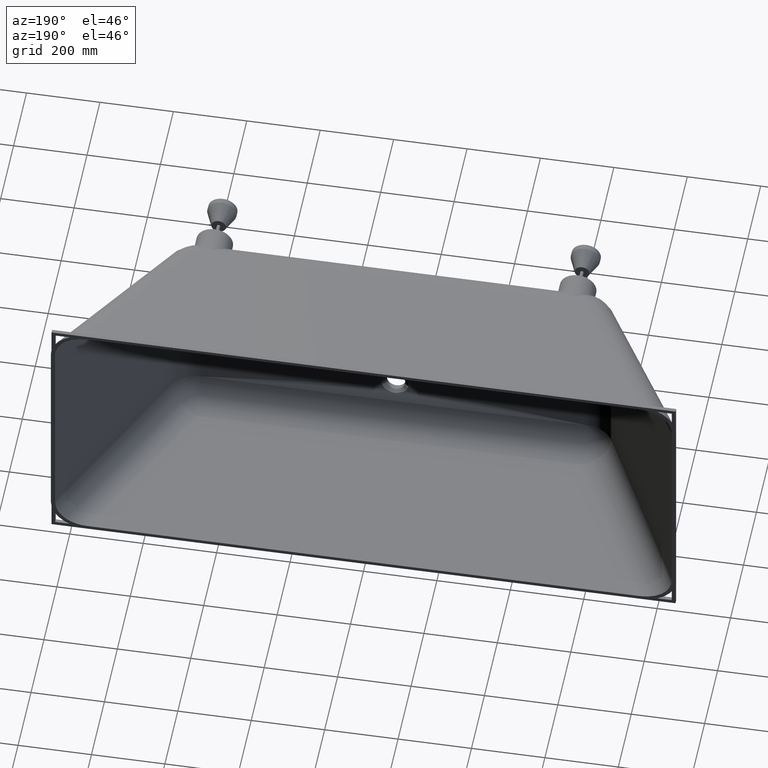
[diagram: clean part render]
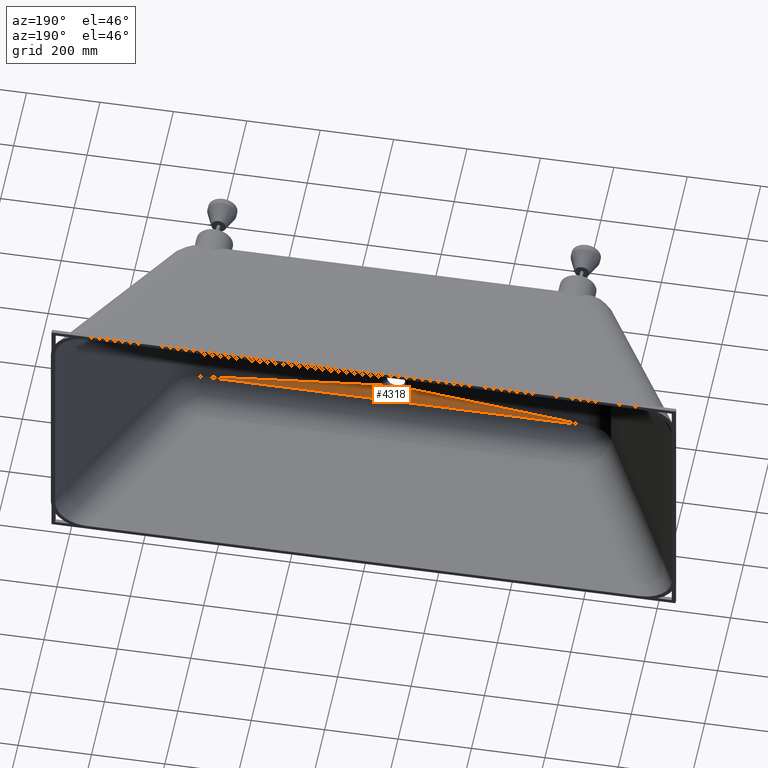
[diagram: same view with one face highlighted and labeled with its STEP entity id]
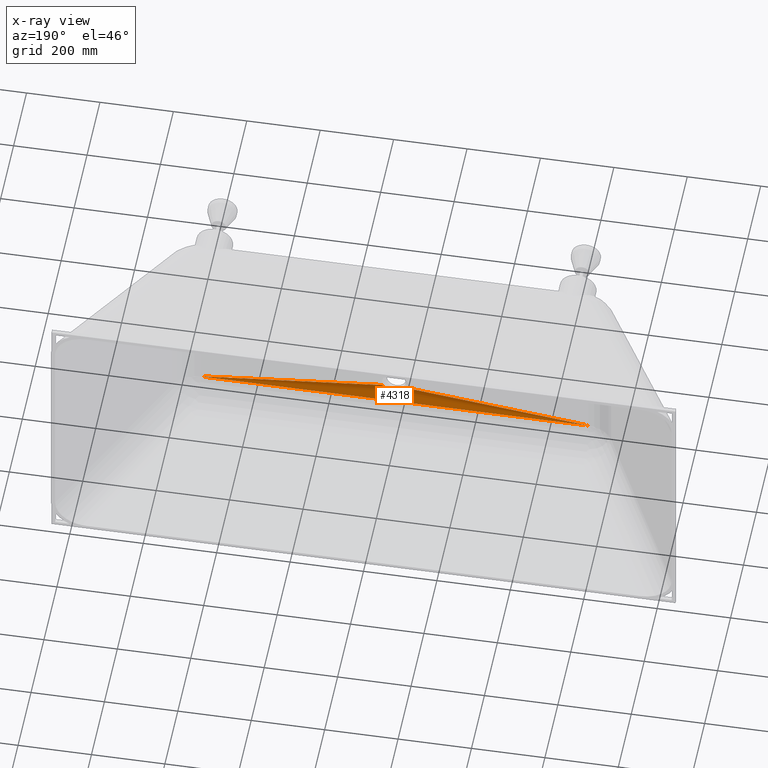
[diagram: x-ray of the same camera — body ghosted, the highlighted face saturated]
A machine part, auxiliary view. The second image highlights one B-rep face of the part: STEP entity #4318.
The next image is the same camera in x-ray: the body ghosted, the highlighted face saturated — about 0% of this face is hidden behind the body in this view.
In plain terms, the highlighted face is a freeform B-spline surface patch.
Its self-contained STEP definition (entity closure, byte-faithful):
#44 = CARTESIAN_POINT ( 'NONE',  ( 351.9199140292354300, -478.0000000000001100, -229.4140630938798600 ) ) ;
#107 = CARTESIAN_POINT ( 'NONE',  ( 373.9149086560627200, -478.0000000000001100, -229.4140630938798600 ) ) ;
#122 = CARTESIAN_POINT ( 'NONE',  ( -16.42856483593766400, -489.9999999999999400, -195.1927728411986900 ) ) ;
#164 = CARTESIAN_POINT ( 'NONE',  ( 552.0021505911377100, -478.0000000000000000, -229.4140630938798300 ) ) ;
#168 = CARTESIAN_POINT ( 'NONE',  ( 24.27977139692567100, -490.0000000000000000, -184.3637624961061500 ) ) ;
#178 = CARTESIAN_POINT ( 'NONE',  ( 543.9613907420429100, -478.0000000000000000, -229.4140630938798300 ) ) ;
#205 = CARTESIAN_POINT ( 'NONE',  ( 24.13499931846997300, -490.0000000000000000, -184.6968818571222600 ) ) ;
#234 = CARTESIAN_POINT ( 'NONE',  ( -14.36089649228784600, -489.9999999999999400, -196.7119890733818300 ) ) ;
#259 = CARTESIAN_POINT ( 'NONE',  ( -241.9449408950995900, -478.0000000000001100, -229.4140630938799700 ) ) ;
#276 = CARTESIAN_POINT ( 'NONE',  ( -219.9499462682723800, -478.0000000000000600, -229.4140630938799700 ) ) ;
#328 = CARTESIAN_POINT ( 'NONE',  ( -13.24512578899276100, -490.0000000000000000, -197.4134264820899300 ) ) ;
#347 = CARTESIAN_POINT ( 'NONE',  ( 19.89495497657938100, -490.0000000000000000, -191.7779520593507500 ) ) ;
#371 = ORIENTED_EDGE ( 'NONE', *, *, #8145, .F. ) ;
#452 = CARTESIAN_POINT ( 'NONE',  ( -9.612949430182062800, -490.0000000000000600, -199.1972234332660300 ) ) ;
#514 = FACE_OUTER_BOUND ( 'NONE', #3612, .T. ) ;
#679 = CARTESIAN_POINT ( 'NONE',  ( -153.9649623877907300, -478.0000000000000600, -229.4140630938799700 ) ) ;
#789 = CARTESIAN_POINT ( 'NONE',  ( 34.90921865954059900, -489.7582946406475300, -185.2711710388507800 ) ) ;
#840 = CARTESIAN_POINT ( 'NONE',  ( -34.81312579075545000, -489.7535379807531500, -185.6169972491677200 ) ) ;
#855 = CARTESIAN_POINT ( 'NONE',  ( -285.9349301487540600, -478.0000000000001100, -229.4140630938799700 ) ) ;
#892 = CARTESIAN_POINT ( 'NONE',  ( -34.71219116730799900, -489.7487132274145000, -185.9610007341331900 ) ) ;
#909 = EDGE_CURVE ( 'NONE', #8344, #3285, #1135, .T. ) ;
#998 = CARTESIAN_POINT ( 'NONE',  ( -34.90911777719951900, -489.7582870126469200, -185.2715435661417900 ) ) ;
#1019 = ORIENTED_EDGE ( 'NONE', *, *, #1194, .F. ) ;
#1073 = CARTESIAN_POINT ( 'NONE',  ( 2.841497131728465000, -490.0000000000000600, -200.8827692435549200 ) ) ;
#1088 = CARTESIAN_POINT ( 'NONE',  ( 5.626477120166374100, -490.0000000000000000, -200.4231116286142400 ) ) ;
#1129 = CARTESIAN_POINT ( 'NONE',  ( -24.27961477613819600, -490.0000000000000000, -184.3641228792490900 ) ) ;
#1135 = B_SPLINE_CURVE_WITH_KNOTS ( 'NONE', 3,
 ( #998, #840, #892, #1723 ),
 .UNSPECIFIED., .F., .F.,
 ( 4, 4 ),
 ( 0.0000000000000000000, 0.001075613878609337400 ),
 .UNSPECIFIED. ) ;
#1185 = B_SPLINE_CURVE_WITH_KNOTS ( 'NONE', 3,
 ( #10769, #10661, #5772, #10350, #10746, #5886 ),
 .UNSPECIFIED., .F., .F.,
 ( 4, 2, 4 ),
 ( 0.2310210792512983600, 0.2317490742567742100, 0.2321187111512779400 ),
 .UNSPECIFIED. ) ;
#1194 = EDGE_CURVE ( 'NONE', #9115, #8344, #1185, .T. ) ;
#1302 = CARTESIAN_POINT ( 'NONE',  ( 34.90921865954059900, -489.7582946406475300, -185.2711710388507800 ) ) ;
#1316 = CARTESIAN_POINT ( 'NONE',  ( 34.81319822774273100, -489.7535414440533800, -185.6167503427229200 ) ) ;
#1358 = CARTESIAN_POINT ( 'NONE',  ( 34.60653280213917800, -489.7438010452975200, -186.3036181321439500 ) ) ;
#1393 = CARTESIAN_POINT ( 'NONE',  ( 87.97997850730871500, -478.0000000000000000, -229.4140630938798600 ) ) ;
#1421 = CARTESIAN_POINT ( 'NONE',  ( 34.71222908998471000, -489.7487149903726000, -185.9608777679274000 ) ) ;
#1426 = CARTESIAN_POINT ( 'NONE',  ( 6.990552677400435400, -490.0000000000000600, -200.0808012609470600 ) ) ;
#1485 = CARTESIAN_POINT ( 'NONE',  ( -34.60653666516741100, -489.7437970501803200, -186.3036192662227700 ) ) ;
#1723 = CARTESIAN_POINT ( 'NONE',  ( -34.60653666516741100, -489.7437970501803200, -186.3036192662227700 ) ) ;
#1734 = CARTESIAN_POINT ( 'NONE',  ( 14.36089649228786400, -490.0000000000000000, -196.7119890733818300 ) ) ;
#1755 = CARTESIAN_POINT ( 'NONE',  ( 34.57137153912265900, -489.7446386604132200, -186.3005250338019600 ) ) ;
#1837 = CARTESIAN_POINT ( 'NONE',  ( 417.9048979097171900, -478.0000000000000600, -229.4140630938798300 ) ) ;
#1861 = CARTESIAN_POINT ( 'NONE',  ( 21.29176422386267800, -490.0000000000000600, -189.9656167618122100 ) ) ;
#1908 = VERTEX_POINT ( 'NONE', #10597 ) ;
#1975 = CARTESIAN_POINT ( 'NONE',  ( -109.9749731341362900, -478.0000000000000000, -229.4140630938799700 ) ) ;
#2168 = CARTESIAN_POINT ( 'NONE',  ( 21.90740286668459900, -489.9999999999999400, -189.0430849932369300 ) ) ;
#2211 = CARTESIAN_POINT ( 'NONE',  ( -19.89495497657936700, -489.9999999999999400, -191.7779520593507800 ) ) ;
#2242 = CARTESIAN_POINT ( 'NONE',  ( 439.8998925365444300, -478.0000000000000600, -229.4140630938798300 ) ) ;
#2255 = CARTESIAN_POINT ( 'NONE',  ( 505.8848764170260800, -478.0000000000000000, -229.4140630938798300 ) ) ;
#2273 = B_SPLINE_SURFACE_WITH_KNOTS ( 'NONE', 3, 1, ( 
 ( #3900, #1129 ),
 ( #9882, #9755 ),
 ( #9957, #6351 ),
 ( #7976, #3951 ),
 ( #7918, #4149 ),
 ( #6277, #9969 ),
 ( #9361, #9809 ),
 ( #9181, #6893 ),
 ( #2882, #2211 ),
 ( #2700, #7511 ),
 ( #9323, #9168 ),
 ( #855, #122 ),
 ( #259, #234 ),
 ( #276, #328 ),
 ( #2432, #3470 ),
 ( #679, #452 ),
 ( #1975, #5833 ),
 ( #3489, #6653 ),
 ( #6674, #6741 ),
 ( #7785, #7380 ),
 ( #8093, #7419 ),
 ( #7751, #1073 ),
 ( #1393, #1088 ),
 ( #3476, #1426 ),
 ( #7607, #7701 ),
 ( #9281, #9335 ),
 ( #9909, #10043 ),
 ( #10706, #1734 ),
 ( #3103, #4437 ),
 ( #9577, #8335 ),
 ( #44, #10799 ),
 ( #107, #347 ),
 ( #1837, #1861 ),
 ( #2242, #2168 ),
 ( #3080, #2352 ),
 ( #2255, #2903 ),
 ( #3045, #2981 ),
 ( #2884, #2294 ),
 ( #178, #205 ),
 ( #164, #168 ) ),
 .UNSPECIFIED., .F., .F., .F.,
 ( 4, 3, 2, 2, 2, 2, 2, 2, 2, 2, 2, 2, 2, 2, 2, 2, 2, 3, 4 ),
 ( 2, 2 ),
 ( -0.02284002670223699000, 0.0000000000000000000, 0.06250000000000000000, 0.1250000000000000000, 0.1875000000000000000, 0.2500000000000000000, 0.3125000000000000000, 0.3750000000000000000, 0.4375000000000000000, 0.5000000000000000000, 0.5625000000000000000, 0.6250000000000000000, 0.6875000000000000000, 0.7500000000000000000, 0.8125000000000000000, 0.8750000000000000000, 0.9375000000000000000, 1.000000000000000000, 1.022848266121214400 ),
 ( 0.0000000000000000000, 1.000000000000000000 ),
 .UNSPECIFIED. ) ;
#2294 = CARTESIAN_POINT ( 'NONE',  ( 23.99022724001427400, -490.0000000000000000, -185.0300012181384100 ) ) ;
#2352 = CARTESIAN_POINT ( 'NONE',  ( 22.98618653362839800, -490.0000000000000000, -187.1974491239659200 ) ) ;
#2432 = CARTESIAN_POINT ( 'NONE',  ( -175.9599570146179100, -478.0000000000000600, -229.4140630938799700 ) ) ;
#2506 = CARTESIAN_POINT ( 'NONE',  ( -275.8626631027058800, -484.0000000000000000, -207.3885918365172600 ) ) ;
#2533 = ORIENTED_EDGE ( 'NONE', *, *, #4844, .F. ) ;
#2700 = CARTESIAN_POINT ( 'NONE',  ( -351.9199140292356600, -478.0000000000000600, -229.4140630938799700 ) ) ;
#2815 = CARTESIAN_POINT ( 'NONE',  ( 34.57137153912265900, -489.7446386604132200, -186.3005250338019600 ) ) ;
#2838 = CARTESIAN_POINT ( 'NONE',  ( 34.64906590777956600, -489.7476592508298800, -186.0764840359326500 ) ) ;
#2882 = CARTESIAN_POINT ( 'NONE',  ( -373.9149086560628300, -478.0000000000000600, -229.4140630938799700 ) ) ;
#2884 = CARTESIAN_POINT ( 'NONE',  ( 535.9206308929481100, -478.0000000000000000, -229.4140630938798300 ) ) ;
#2903 = CARTESIAN_POINT ( 'NONE',  ( 23.44944021427643200, -490.0000000000000600, -186.2743477135486200 ) ) ;
#2949 = CARTESIAN_POINT ( 'NONE',  ( 34.90921865954059900, -489.7582946406475300, -185.2711710388507800 ) ) ;
#2981 = CARTESIAN_POINT ( 'NONE',  ( 23.84545516155857600, -490.0000000000000000, -185.3631205791545300 ) ) ;
#3045 = CARTESIAN_POINT ( 'NONE',  ( 527.8798710438532000, -478.0000000000000000, -229.4140630938798300 ) ) ;
#3080 = CARTESIAN_POINT ( 'NONE',  ( 483.8898817901989000, -478.0000000000000000, -229.4140630938798300 ) ) ;
#3103 = CARTESIAN_POINT ( 'NONE',  ( 285.9349301487537200, -478.0000000000001100, -229.4140630938798600 ) ) ;
#3211 = VERTEX_POINT ( 'NONE', #4646 ) ;
#3285 = VERTEX_POINT ( 'NONE', #1485 ) ;
#3362 = CARTESIAN_POINT ( 'NONE',  ( 30.62448189065692400, -489.5761939994614500, -194.1135667085229100 ) ) ;
#3470 = CARTESIAN_POINT ( 'NONE',  ( -10.87113848044312000, -489.9999999999999400, -198.6561491366054500 ) ) ;
#3476 = CARTESIAN_POINT ( 'NONE',  ( 109.9749731341359200, -478.0000000000000600, -229.4140630938798600 ) ) ;
#3489 = CARTESIAN_POINT ( 'NONE',  ( -87.97997850730907000, -478.0000000000000000, -229.4140630938799500 ) ) ;
#3527 = CARTESIAN_POINT ( 'NONE',  ( 32.24490333195215200, -489.6511361342630300, -191.5336033166190600 ) ) ;
#3612 = EDGE_LOOP ( 'NONE', ( #5550, #2533, #3693, #5811, #1019, #371, #10620, #10352 ) ) ;
#3646 = CARTESIAN_POINT ( 'NONE',  ( 31.73229439157022100, -489.6287046380500100, -192.4156488194324500 ) ) ;
#3693 = ORIENTED_EDGE ( 'NONE', *, *, #4766, .T. ) ;
#3900 = CARTESIAN_POINT ( 'NONE',  ( -551.9934517442831100, -478.0000000000000000, -229.4140630938799700 ) ) ;
#3951 = CARTESIAN_POINT ( 'NONE',  ( -23.84545516155856500, -490.0000000000000000, -185.3631205791545500 ) ) ;
#4149 = CARTESIAN_POINT ( 'NONE',  ( -23.44944021427642900, -490.0000000000000600, -186.2743477135486200 ) ) ;
#4318 = ADVANCED_FACE ( 'NONE', ( #514 ), #2273, .F. ) ;
#4437 = CARTESIAN_POINT ( 'NONE',  ( 16.42856483593767800, -490.0000000000000000, -195.1927728411986600 ) ) ;
#4508 = EDGE_CURVE ( 'NONE', #5712, #9866, #7500, .T. ) ;
#4646 = CARTESIAN_POINT ( 'NONE',  ( 34.60653280213917800, -489.7438010452975200, -186.3036181321439500 ) ) ;
#4766 = EDGE_CURVE ( 'NONE', #7539, #3285, #7287, .T. ) ;
#4844 = EDGE_CURVE ( 'NONE', #7539, #1908, #7526, .T. ) ;
#5042 = LINE ( 'NONE', #8071, #5053 ) ;
#5053 = VECTOR ( 'NONE', #8034, 1000.000000000000100 ) ;
#5147 = CARTESIAN_POINT ( 'NONE',  ( -34.90911777719951900, -489.7582870126469200, -185.2715435661417900 ) ) ;
#5258 = CARTESIAN_POINT ( 'NONE',  ( 574.9999999999995500, -478.0000000000000000, -229.4140630938798300 ) ) ;
#5436 = DIRECTION ( 'NONE',  ( 1.000000000000000000, -0.0000000000000000000, 1.321694076934710400E-016 ) ) ;
#5466 = B_SPLINE_CURVE_WITH_KNOTS ( 'NONE', 3,
 ( #1358, #1421, #1316, #1302 ),
 .UNSPECIFIED., .F., .F.,
 ( 4, 4 ),
 ( 1.614360201001457700E-008, 0.001076015987727126700 ),
 .UNSPECIFIED. ) ;
#5550 = ORIENTED_EDGE ( 'NONE', *, *, #7010, .F. ) ;
#5712 = VERTEX_POINT ( 'NONE', #2949 ) ;
#5772 = CARTESIAN_POINT ( 'NONE',  ( -34.72523408009813300, -489.7507112005296200, -185.8476962548551500 ) ) ;
#5811 = ORIENTED_EDGE ( 'NONE', *, *, #909, .F. ) ;
#5833 = CARTESIAN_POINT ( 'NONE',  ( -6.990552677400414100, -490.0000000000000600, -200.0808012609471100 ) ) ;
#5886 = CARTESIAN_POINT ( 'NONE',  ( -34.90911777719951900, -489.7582870126469200, -185.2715435661417900 ) ) ;
#6180 = VECTOR ( 'NONE', #5436, 1000.000000000000000 ) ;
#6247 = CARTESIAN_POINT ( 'NONE',  ( 32.95190144672751800, -489.6807236069400900, -190.1682904914861500 ) ) ;
#6277 = CARTESIAN_POINT ( 'NONE',  ( -483.8898817901989000, -478.0000000000000000, -229.4140630938799700 ) ) ;
#6310 = CARTESIAN_POINT ( 'NONE',  ( 33.81236855733588000, -489.7151946108838800, -188.2904451089738700 ) ) ;
#6351 = CARTESIAN_POINT ( 'NONE',  ( -23.99017503308510900, -490.0000000000000000, -185.0301213458527300 ) ) ;
#6518 = CARTESIAN_POINT ( 'NONE',  ( 33.17740019672329100, -489.6899110542940400, -189.7056287996493000 ) ) ;
#6531 = CARTESIAN_POINT ( 'NONE',  ( -34.57137128877106800, -489.7446386680071000, -186.3005249809395100 ) ) ;
#6653 = CARTESIAN_POINT ( 'NONE',  ( -5.626477120166351000, -490.0000000000000600, -200.4231116286142400 ) ) ;
#6674 = CARTESIAN_POINT ( 'NONE',  ( -43.98998925365462000, -478.0000000000000600, -229.4140630938799200 ) ) ;
#6741 = CARTESIAN_POINT ( 'NONE',  ( -2.841497131728441900, -489.9999999999999400, -200.8827692435549500 ) ) ;
#6893 = CARTESIAN_POINT ( 'NONE',  ( -21.29176422386266100, -490.0000000000000000, -189.9656167618123000 ) ) ;
#6938 = CARTESIAN_POINT ( 'NONE',  ( 34.57137153912265900, -489.7446386604132200, -186.3005250338019600 ) ) ;
#7010 = EDGE_CURVE ( 'NONE', #1908, #3211, #5042, .T. ) ;
#7217 = CARTESIAN_POINT ( 'NONE',  ( 33.60760838948528600, -489.7071460639176100, -188.7668681811128100 ) ) ;
#7275 = CARTESIAN_POINT ( 'NONE',  ( -34.57137128877106800, -489.7446386680071000, -186.3005249809395100 ) ) ;
#7287 = LINE ( 'NONE', #2506, #8273 ) ;
#7310 = CARTESIAN_POINT ( 'NONE',  ( -34.56422592215969300, -489.7443609501057200, -186.3211295368077700 ) ) ;
#7340 = CARTESIAN_POINT ( 'NONE',  ( -34.55706193629043100, -489.7440831955872800, -186.3417108422735900 ) ) ;
#7346 = CARTESIAN_POINT ( 'NONE',  ( 34.72460385454179700, -489.7506861757273100, -185.8495672254480600 ) ) ;
#7380 = CARTESIAN_POINT ( 'NONE',  ( -1.420811856275621800, -489.9999999999999400, -200.9999999999998900 ) ) ;
#7384 = CARTESIAN_POINT ( 'NONE',  ( -34.46440345831153700, -489.7405008865540000, -186.6068930914010200 ) ) ;
#7419 = CARTESIAN_POINT ( 'NONE',  ( 1.420811856275648900, -490.0000000000000000, -200.9999999999998300 ) ) ;
#7447 = CARTESIAN_POINT ( 'NONE',  ( 34.19533311596485000, -489.7300990787053900, -187.3308534744705000 ) ) ;
#7478 = CARTESIAN_POINT ( 'NONE',  ( -34.37640164218820600, -489.7371056424368600, -186.8490886769754700 ) ) ;
#7500 = B_SPLINE_CURVE_WITH_KNOTS ( 'NONE', 3,
 ( #789, #8610, #8782, #7346, #2838, #2815 ),
 .UNSPECIFIED., .F., .F.,
 ( 4, 2, 4 ),
 ( 0.1375912541658644000, 0.1379682659388538900, 0.1386965475228338400 ),
 .UNSPECIFIED. ) ;
#7507 = CARTESIAN_POINT ( 'NONE',  ( 34.46483201178272500, -489.7405173761665100, -186.6056805695329200 ) ) ;
#7511 = CARTESIAN_POINT ( 'NONE',  ( -19.11366220151037600, -490.0000000000001700, -192.6677028309949800 ) ) ;
#7526 = LINE ( 'NONE', #5258, #6180 ) ;
#7539 = VERTEX_POINT ( 'NONE', #10537 ) ;
#7563 = CARTESIAN_POINT ( 'NONE',  ( -34.19509028100604600, -489.7300896610273600, -187.3314761722979000 ) ) ;
#7601 = CARTESIAN_POINT ( 'NONE',  ( 34.37691462954535400, -489.7371254717878600, -186.8477003760847600 ) ) ;
#7607 = CARTESIAN_POINT ( 'NONE',  ( 153.9649623877903700, -478.0000000000000600, -229.4140630938798600 ) ) ;
#7636 = CARTESIAN_POINT ( 'NONE',  ( 34.56428146515923300, -489.7443630946243600, -186.3209701350868700 ) ) ;
#7701 = CARTESIAN_POINT ( 'NONE',  ( 9.612949430182085900, -490.0000000000000600, -199.1972234332658600 ) ) ;
#7703 = CARTESIAN_POINT ( 'NONE',  ( -34.10181261529664500, -489.7264770672310900, -187.5713366207243100 ) ) ;
#7751 = CARTESIAN_POINT ( 'NONE',  ( 43.98998925365426500, -478.0000000000000000, -229.4140630938798900 ) ) ;
#7756 = CARTESIAN_POINT ( 'NONE',  ( -33.62263294108407100, -489.7077839939155400, -188.7615710922719600 ) ) ;
#7777 = CARTESIAN_POINT ( 'NONE',  ( -33.19773535533104800, -489.6909892008026200, -189.6910524825343300 ) ) ;
#7785 = CARTESIAN_POINT ( 'NONE',  ( -21.99499462682739900, -478.0000000000000600, -229.4140630938798900 ) ) ;
#7790 = CARTESIAN_POINT ( 'NONE',  ( -32.26595155387288100, -489.6520386622705100, -191.4953686979575000 ) ) ;
#7854 = CARTESIAN_POINT ( 'NONE',  ( -31.75877210515314900, -489.6298856259181200, -192.3712181291421100 ) ) ;
#7918 = CARTESIAN_POINT ( 'NONE',  ( -505.8848764170260800, -478.0000000000000000, -229.4140630938799700 ) ) ;
#7967 = CARTESIAN_POINT ( 'NONE',  ( 34.10169497236433500, -489.7264680670821800, -187.5715506875204400 ) ) ;
#7976 = CARTESIAN_POINT ( 'NONE',  ( -527.8798710438532000, -478.0000000000000000, -229.4140630938799700 ) ) ;
#8034 = DIRECTION ( 'NONE',  ( -0.9959225751389640900, -0.02371082316025513100, 0.08704034233410125300 ) ) ;
#8066 = CARTESIAN_POINT ( 'NONE',  ( 34.55717167138438800, -489.7440874396668800, -186.3413963188950800 ) ) ;
#8071 = CARTESIAN_POINT ( 'NONE',  ( 275.8626631027058800, -484.0000000000000000, -207.3885918365171800 ) ) ;
#8093 = CARTESIAN_POINT ( 'NONE',  ( 21.99499462682704000, -478.0000000000000600, -229.4140630938798900 ) ) ;
#8110 = CARTESIAN_POINT ( 'NONE',  ( -30.93645992814829200, -489.5910159224925500, -193.6371697913189400 ) ) ;
#8145 = EDGE_CURVE ( 'NONE', #9866, #9115, #8539, .T. ) ;
#8216 = DIRECTION ( 'NONE',  ( 0.9959225751389640900, -0.02371082316025513400, 0.08704034233410143400 ) ) ;
#8244 = CARTESIAN_POINT ( 'NONE',  ( -30.65172841255891000, -489.5770924559702700, -194.0515723936180400 ) ) ;
#8269 = CARTESIAN_POINT ( 'NONE',  ( -30.06186255313114200, -489.5470334995138700, -194.8623943595764800 ) ) ;
#8273 = VECTOR ( 'NONE', #8216, 1000.000000000000100 ) ;
#8300 = CARTESIAN_POINT ( 'NONE',  ( -29.75598192823783000, -489.5308535338291400, -195.2596193336919700 ) ) ;
#8335 = CARTESIAN_POINT ( 'NONE',  ( 17.38052185592522400, -490.0000000000001700, -194.3751713823000700 ) ) ;
#8344 = VERTEX_POINT ( 'NONE', #5147 ) ;
#8366 = CARTESIAN_POINT ( 'NONE',  ( -28.81280048435664700, -489.4787647924933900, -196.4151271014845300 ) ) ;
#8397 = CARTESIAN_POINT ( 'NONE',  ( -28.14923947088948000, -489.4392412606486600, -197.1383158869942900 ) ) ;
#8523 = CARTESIAN_POINT ( 'NONE',  ( -26.75716236716470300, -489.3489211056916000, -198.4813935863379600 ) ) ;
#8535 = CARTESIAN_POINT ( 'NONE',  ( -26.02574180142650200, -489.2978764215309900, -199.1031035957717300 ) ) ;
#8539 = B_SPLINE_CURVE_WITH_KNOTS ( 'NONE', 3,
 ( #1755, #7636, #8066, #7507, #7601, #7447, #7967, #6310, #7217, #6518, #6247, #3527, #3646, #3362, #10817, #10784, #10668, #10591, #10479, #10440, #10403, #10333, #10290, #10273, #10247, #10235, #10188, #10151, #10085, #10046, #10010, #9940, #9829, #9787, #9752, #9715, #9683, #9651, #9609, #9572, #9449, #9434, #9409, #9367, #9353, #9315, #9238, #9200, #9095, #9028, #8998, #8959, #8930, #8895, #8860, #8728, #8696, #8662, #8619, #8605, #8579, #8535, #8523, #8397, #8366, #8300, #8269, #8244, #8110, #7854, #7790, #7777, #7756, #7703, #7563, #7478, #7384, #7340, #7310, #7275 ),
 .UNSPECIFIED., .F., .F.,
 ( 4, 2, 2, 2, 2, 2, 2, 2, 2, 2, 2, 2, 2, 2, 2, 2, 2, 2, 2, 2, 2, 2, 2, 2, 2, 2, 2, 2, 2, 2, 2, 2, 2, 2, 2, 2, 2, 2, 2, 4 ),
 ( 0.0000000000000000000, 0.0007200305964072410600, 0.009328279170759979200, 0.01793652774511301700, 0.03515302489381879500, 0.05236952204252486700, 0.08680251633993642200, 0.1212355106373479700, 0.1556685049347598100, 0.1901014992321716800, 0.2245344935295832400, 0.2589674878269948000, 0.2934004821244066100, 0.3106169792731123800, 0.3278334764218184800, 0.3622664707192300200, 0.3966994650166416100, 0.4311324593140534200, 0.4483489564627592400, 0.4655654536114652900, 0.4999984479088768200, 0.5344314422062883500, 0.5688644365037002200, 0.6032974308011120900, 0.6205139279498178600, 0.6377304250985236200, 0.6721634193959351600, 0.7065964136933470300, 0.7410294079907588900, 0.7754624022881704300, 0.8098953965855819600, 0.8443283908829938300, 0.8787613851804057000, 0.8959778823291114600, 0.9131943794778172300, 0.9476273737752291000, 0.9820603680726409700, 0.9906686166469936800, 0.9992768652213467300, 1.000000000000000000 ),
 .UNSPECIFIED. ) ;
#8579 = CARTESIAN_POINT ( 'NONE',  ( -24.51367952336027800, -489.1846065997979200, -200.2363773585316000 ) ) ;
#8605 = CARTESIAN_POINT ( 'NONE',  ( -23.73257519651867000, -489.1224636528502300, -200.7492339063834900 ) ) ;
#8610 = CARTESIAN_POINT ( 'NONE',  ( 34.87265845498644300, -489.7567595069410800, -185.3887472411103400 ) ) ;
#8619 = CARTESIAN_POINT ( 'NONE',  ( -22.12335376704221100, -488.9861051814718300, -201.6929137034137500 ) ) ;
#8662 = CARTESIAN_POINT ( 'NONE',  ( -21.29288125698425600, -488.9116754652340500, -202.1251807797032400 ) ) ;
#8696 = CARTESIAN_POINT ( 'NONE',  ( -19.59899454790372200, -488.7498067906142900, -202.9326738049163300 ) ) ;
#8728 = CARTESIAN_POINT ( 'NONE',  ( -18.73258045176746100, -488.6616397070531500, -203.3112790505586800 ) ) ;
#8782 = CARTESIAN_POINT ( 'NONE',  ( 34.83546804896703000, -489.7552184700372800, -185.5061416705913800 ) ) ;
#8860 = CARTESIAN_POINT ( 'NONE',  ( -16.95463436361758300, -488.4700615904068900, -204.0422692738706000 ) ) ;
#8895 = CARTESIAN_POINT ( 'NONE',  ( -16.04262578296246700, -488.3663645389339600, -204.3949399322893600 ) ) ;
#8930 = CARTESIAN_POINT ( 'NONE',  ( -14.18297491132161000, -488.1522762484797200, -205.0701423294762000 ) ) ;
#8959 = CARTESIAN_POINT ( 'NONE',  ( -13.23260942403278600, -488.0419518650311900, -205.3929916076917000 ) ) ;
#8998 = CARTESIAN_POINT ( 'NONE',  ( -11.77236622075791100, -487.8816954917102200, -205.8437391287994800 ) ) ;
#9028 = CARTESIAN_POINT ( 'NONE',  ( -11.28008979323412000, -487.8292763471076800, -205.9880628864111700 ) ) ;
#9095 = CARTESIAN_POINT ( 'NONE',  ( -10.29181884642535400, -487.7288155183321700, -206.2607174438641700 ) ) ;
#9115 = VERTEX_POINT ( 'NONE', #6531 ) ;
#9168 = CARTESIAN_POINT ( 'NONE',  ( -17.38052185592519900, -490.0000000000000600, -194.3751713823001000 ) ) ;
#9181 = CARTESIAN_POINT ( 'NONE',  ( -417.9048979097172500, -478.0000000000000600, -229.4140630938799700 ) ) ;
#9200 = CARTESIAN_POINT ( 'NONE',  ( -9.794500488598359300, -487.6806385652391200, -206.3894396796685600 ) ) ;
#9238 = CARTESIAN_POINT ( 'NONE',  ( -8.295743394804780700, -487.5445384417563400, -206.7495038276103700 ) ) ;
#9281 = CARTESIAN_POINT ( 'NONE',  ( 175.9599570146175700, -478.0000000000000600, -229.4140630938798600 ) ) ;
#9315 = CARTESIAN_POINT ( 'NONE',  ( -7.285600482875522300, -487.4649169012654400, -206.9552394964748600 ) ) ;
#9323 = CARTESIAN_POINT ( 'NONE',  ( -307.9299247755812400, -478.0000000000000600, -229.4140630938799700 ) ) ;
#9335 = CARTESIAN_POINT ( 'NONE',  ( 10.87113848044314300, -489.9999999999999400, -198.6561491366054200 ) ) ;
#9353 = CARTESIAN_POINT ( 'NONE',  ( -5.246561865474468800, -487.3349238962437100, -207.2886467172320700 ) ) ;
#9361 = CARTESIAN_POINT ( 'NONE',  ( -439.8998925365444300, -478.0000000000000000, -229.4140630938799700 ) ) ;
#9367 = CARTESIAN_POINT ( 'NONE',  ( -4.217451374848972800, -487.2844126995528300, -207.4165490131120700 ) ) ;
#9409 = CARTESIAN_POINT ( 'NONE',  ( -2.141231747540196300, -487.2161205454714800, -207.5891579956076800 ) ) ;
#9434 = CARTESIAN_POINT ( 'NONE',  ( -1.094244727147064300, -487.1982819744504200, -207.6339527520555900 ) ) ;
#9449 = CARTESIAN_POINT ( 'NONE',  ( 1.017684098407289000, -487.1974405340566200, -207.6360695026882000 ) ) ;
#9572 = CARTESIAN_POINT ( 'NONE',  ( 2.070918113063230600, -487.2144776317811600, -207.5932943814019000 ) ) ;
#9577 = CARTESIAN_POINT ( 'NONE',  ( 307.9299247755809600, -478.0000000000001100, -229.4140630938798600 ) ) ;
#9609 = CARTESIAN_POINT ( 'NONE',  ( 3.644626425922689300, -487.2652627736501900, -207.4649577175037200 ) ) ;
#9651 = CARTESIAN_POINT ( 'NONE',  ( 4.169046327185058400, -487.2864551241986000, -207.4113199552512600 ) ) ;
#9683 = CARTESIAN_POINT ( 'NONE',  ( 5.211963062339069800, -487.3367636245704900, -207.2834562126823500 ) ) ;
#9715 = CARTESIAN_POINT ( 'NONE',  ( 5.729380336375826700, -487.3658126375015100, -207.2094062974104800 ) ) ;
#9752 = CARTESIAN_POINT ( 'NONE',  ( 7.269148775262089600, -487.4636593538192500, -206.9584966831796200 ) ) ;
#9755 = CARTESIAN_POINT ( 'NONE',  ( -24.13489490461165200, -490.0000000000000000, -184.6971221125509100 ) ) ;
#9787 = CARTESIAN_POINT ( 'NONE',  ( 8.280954764785502000, -487.5433379387233700, -206.7526171825612400 ) ) ;
#9809 = CARTESIAN_POINT ( 'NONE',  ( -21.90740286668458800, -489.9999999999998300, -189.0430849932369300 ) ) ;
#9829 = CARTESIAN_POINT ( 'NONE',  ( 10.27175524166955800, -487.7238373613969900, -206.2752149722904800 ) ) ;
#9866 = VERTEX_POINT ( 'NONE', #6938 ) ;
#9882 = CARTESIAN_POINT ( 'NONE',  ( -543.9555915108064700, -478.0000000000000000, -229.4140630938799700 ) ) ;
#9909 = CARTESIAN_POINT ( 'NONE',  ( 219.9499462682720400, -478.0000000000000600, -229.4140630938798600 ) ) ;
#9940 = CARTESIAN_POINT ( 'NONE',  ( 11.25108848754438500, -487.8246859754386300, -206.0036990017055100 ) ) ;
#9957 = CARTESIAN_POINT ( 'NONE',  ( -535.9177312773298400, -478.0000000000000000, -229.4140630938799700 ) ) ;
#9969 = CARTESIAN_POINT ( 'NONE',  ( -22.98618653362839500, -490.0000000000000000, -187.1974491239660400 ) ) ;
#10010 = CARTESIAN_POINT ( 'NONE',  ( 13.17702260529362600, -488.0356644277664500, -205.4110488260261900 ) ) ;
#10043 = CARTESIAN_POINT ( 'NONE',  ( 13.24512578899277100, -490.0000000000000600, -197.4134264820898500 ) ) ;
#10046 = CARTESIAN_POINT ( 'NONE',  ( 14.12288521967246500, -488.1453295310005300, -205.0909788799830600 ) ) ;
#10085 = CARTESIAN_POINT ( 'NONE',  ( 15.52007473373153300, -488.3062226290702500, -204.5851093279620700 ) ) ;
#10151 = CARTESIAN_POINT ( 'NONE',  ( 15.98191123964200200, -488.3591736899761600, -204.4123171942648000 ) ) ;
#10188 = CARTESIAN_POINT ( 'NONE',  ( 16.89226640337310700, -488.4618377481708600, -204.0612025347324400 ) ) ;
#10235 = CARTESIAN_POINT ( 'NONE',  ( 17.34201146003748300, -488.5116857740281900, -203.8824697271200300 ) ) ;
#10247 = CARTESIAN_POINT ( 'NONE',  ( 18.67430681734477500, -488.6555692495518300, -203.3362065572370100 ) ) ;
#10273 = CARTESIAN_POINT ( 'NONE',  ( 19.54156918596218200, -488.7440993495565100, -202.9585171228270900 ) ) ;
#10290 = CARTESIAN_POINT ( 'NONE',  ( 21.24156861813588300, -488.9069746203947500, -202.1510935357895300 ) ) ;
#10333 = CARTESIAN_POINT ( 'NONE',  ( 22.06909919274308900, -488.9813164293460100, -201.7221741376337400 ) ) ;
#10350 = CARTESIAN_POINT ( 'NONE',  ( -34.83614706432178600, -489.7552466558032600, -185.5039935636056600 ) ) ;
#10352 = ORIENTED_EDGE ( 'NONE', *, *, #10697, .F. ) ;
#10403 = CARTESIAN_POINT ( 'NONE',  ( 23.67883411995440900, -489.1180893924194500, -200.7831376828118300 ) ) ;
#10440 = CARTESIAN_POINT ( 'NONE',  ( 24.46186647482146600, -489.1805640992547500, -200.2720348963615000 ) ) ;
#10479 = CARTESIAN_POINT ( 'NONE',  ( 25.97905458933177800, -489.2945307187302400, -199.1410794177371600 ) ) ;
#10537 = CARTESIAN_POINT ( 'NONE',  ( -527.8798710438532000, -478.0000000000000000, -229.4140630938799700 ) ) ;
#10591 = CARTESIAN_POINT ( 'NONE',  ( 26.70775061493807100, -489.3455417076276000, -198.5250047272635400 ) ) ;
#10597 = CARTESIAN_POINT ( 'NONE',  ( 527.8798710438532000, -478.0000000000000000, -229.4140630938798300 ) ) ;
#10620 = ORIENTED_EDGE ( 'NONE', *, *, #4508, .F. ) ;
#10661 = CARTESIAN_POINT ( 'NONE',  ( -34.64930473698399300, -489.7476685916623200, -186.0757944629295700 ) ) ;
#10668 = CARTESIAN_POINT ( 'NONE',  ( 28.10227808363000400, -489.4363559805806300, -197.1874068844979900 ) ) ;
#10697 = EDGE_CURVE ( 'NONE', #3211, #5712, #5466, .T. ) ;
#10706 = CARTESIAN_POINT ( 'NONE',  ( 241.9449408950992800, -478.0000000000001100, -229.4140630938798600 ) ) ;
#10746 = CARTESIAN_POINT ( 'NONE',  ( -34.87291998540873500, -489.7567684082808300, -185.3879326293512700 ) ) ;
#10769 = CARTESIAN_POINT ( 'NONE',  ( -34.57137128877106800, -489.7446386680071000, -186.3005249809395100 ) ) ;
#10784 = CARTESIAN_POINT ( 'NONE',  ( 28.76898623193931900, -489.4762168211362300, -196.4647462914044000 ) ) ;
#10799 = CARTESIAN_POINT ( 'NONE',  ( 19.11366220151038000, -490.0000000000001700, -192.6677028309949500 ) ) ;
#10817 = CARTESIAN_POINT ( 'NONE',  ( 30.03048581431389200, -489.5461331553964900, -194.9271192002522600 ) ) ;